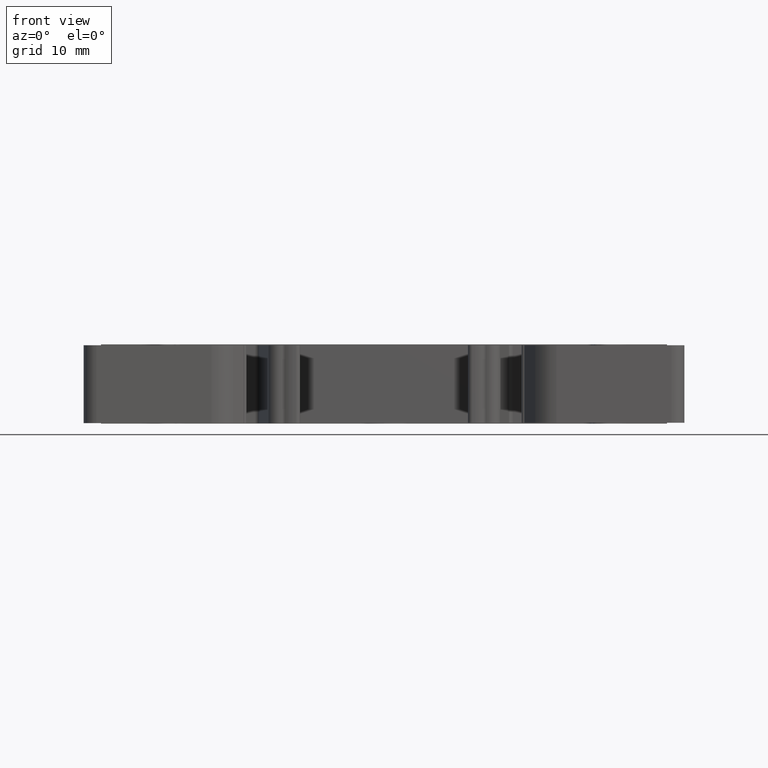
[diagram: clean part render]
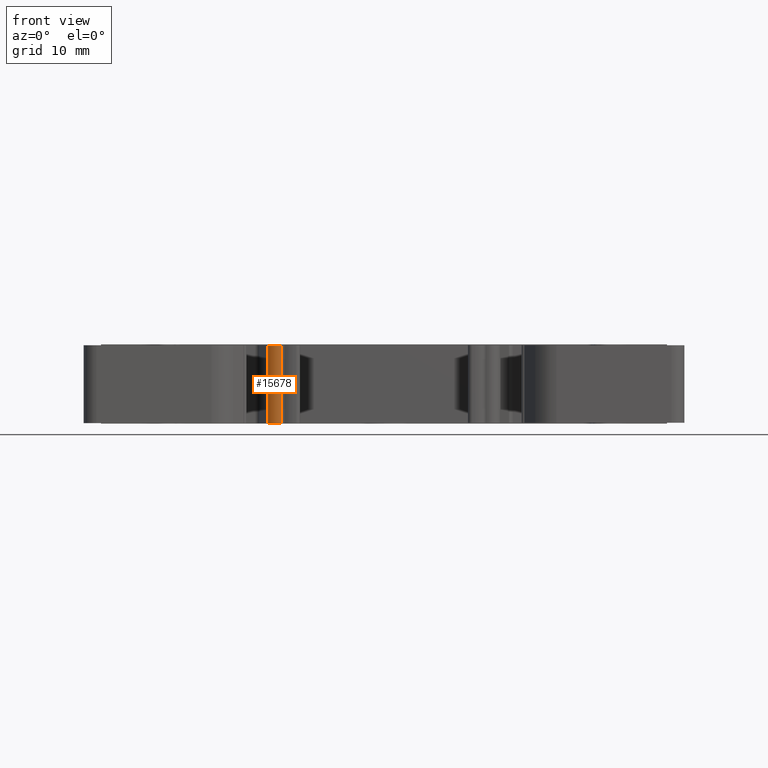
[diagram: same view with one face highlighted and labeled with its STEP entity id]
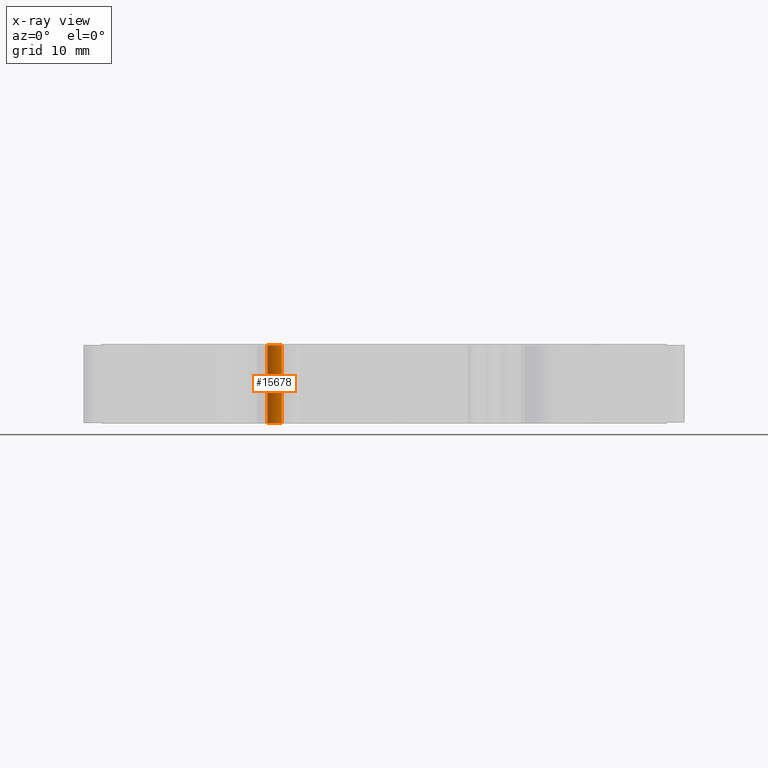
[diagram: x-ray of the same camera — body ghosted, the highlighted face saturated]
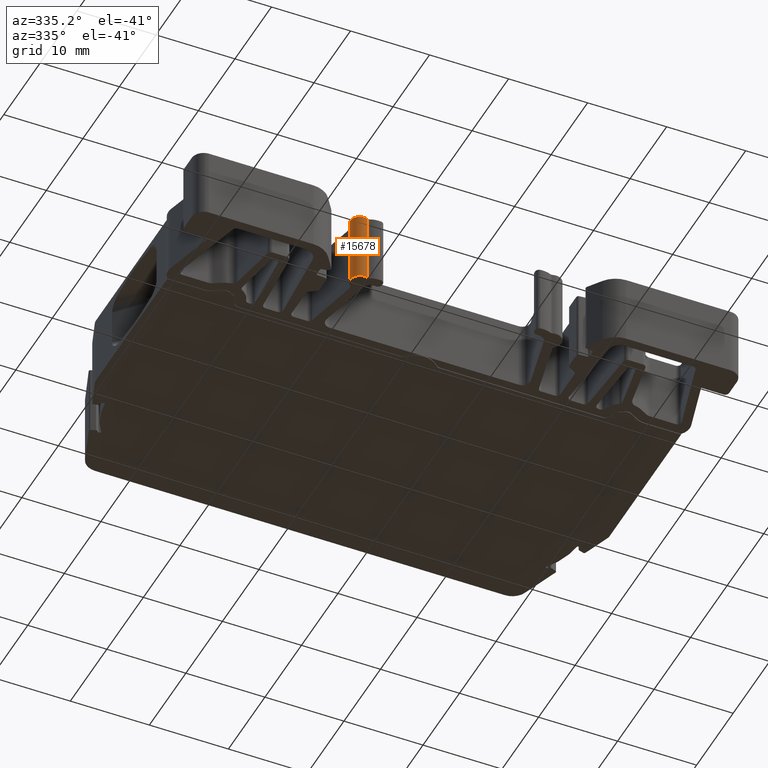
[diagram: same view with one face highlighted and labeled with its STEP entity id]
A machine part, front view. The second image highlights one B-rep face of the part: STEP entity #15678.
The next image is the same camera in x-ray: the body ghosted, the highlighted face saturated — about 0% of this face is hidden behind the body in this view.
A second angle (auxiliary view) of the same face is appended — the face is thin or edge-on in the first view.
In plain terms, the highlighted cylindrical surface (edge-blend (fillet) strip) has radius 1.25 mm, axis along (0, 0, -1).
Its self-contained STEP definition (entity closure, byte-faithful):
#1558 = AXIS2_PLACEMENT_3D ( 'NONE', #9824, #9842, #9845 ) ;
#3228 = EDGE_CURVE ( 'NONE', #4035, #4172, #11265, .T. ) ;
#3240 = EDGE_CURVE ( 'NONE', #4112, #4035, #14305, .T. ) ;
#3249 = EDGE_CURVE ( 'NONE', #4116, #4112, #11314, .T. ) ;
#3334 = EDGE_CURVE ( 'NONE', #4172, #4116, #14576, .T. ) ;
#4035 = VERTEX_POINT ( 'NONE', #10660 ) ;
#4112 = VERTEX_POINT ( 'NONE', #10779 ) ;
#4116 = VERTEX_POINT ( 'NONE', #10789 ) ;
#4172 = VERTEX_POINT ( 'NONE', #10827 ) ;
#4569 = ORIENTED_EDGE ( 'NONE', *, *, #3249, .T. ) ;
#4581 = ORIENTED_EDGE ( 'NONE', *, *, #3334, .T. ) ;
#4585 = ORIENTED_EDGE ( 'NONE', *, *, #3240, .T. ) ;
#4602 = ORIENTED_EDGE ( 'NONE', *, *, #3228, .T. ) ;
#6111 = EDGE_LOOP ( 'NONE', ( #4569, #4585, #4602, #4581 ) ) ;
#9797 = FACE_OUTER_BOUND ( 'NONE', #6111, .T. ) ;
#9824 = CARTESIAN_POINT ( 'NONE',  ( 460.0868206235280100, 100.9281166070622100, 35.79999999999999700 ) ) ;
#9832 = CYLINDRICAL_SURFACE ( 'NONE', #1558, 1.250000258073980000 ) ;
#9842 = DIRECTION ( 'NONE',  ( 0.0000000000000000000, 0.0000000000000000000, -1.000000000000000000 ) ) ;
#9845 = DIRECTION ( 'NONE',  ( -1.000000000000000000, 0.0000000000000000000, 0.0000000000000000000 ) ) ;
#10660 = CARTESIAN_POINT ( 'NONE',  ( 458.8368203654540600, 100.9281166070622100, 26.89999999999999900 ) ) ;
#10779 = CARTESIAN_POINT ( 'NONE',  ( 458.8368203654540600, 100.9281166070622100, 35.85000000000000100 ) ) ;
#10789 = CARTESIAN_POINT ( 'NONE',  ( 460.4825954267300300, 99.74242569019752100, 35.85000000000000100 ) ) ;
#10827 = CARTESIAN_POINT ( 'NONE',  ( 460.4825954267300300, 99.74242569019752100, 26.89999999999999900 ) ) ;
#11265 = CIRCLE ( 'NONE', #11267, 1.250000258073980000 ) ;
#11267 = AXIS2_PLACEMENT_3D ( 'NONE', #14294, #14330, #14334 ) ;
#11314 = CIRCLE ( 'NONE', #11319, 1.250000258073980000 ) ;
#11319 = AXIS2_PLACEMENT_3D ( 'NONE', #14257, #14291, #14261 ) ;
#11337 = VECTOR ( 'NONE', #14315, 1000.000000000000000 ) ;
#11385 = VECTOR ( 'NONE', #14590, 1000.000000000000000 ) ;
#14257 = CARTESIAN_POINT ( 'NONE',  ( 460.0868206235280100, 100.9281166070622100, 35.85000000000000100 ) ) ;
#14261 = DIRECTION ( 'NONE',  ( 1.000000000000000000, 0.0000000000000000000, 0.0000000000000000000 ) ) ;
#14281 = CARTESIAN_POINT ( 'NONE',  ( 458.8368203654540600, 100.9281166070622100, 35.79999999999999700 ) ) ;
#14291 = DIRECTION ( 'NONE',  ( -0.0000000000000000000, -0.0000000000000000000, -1.000000000000000000 ) ) ;
#14294 = CARTESIAN_POINT ( 'NONE',  ( 460.0868206235280100, 100.9281166070622100, 26.89999999999999900 ) ) ;
#14305 = LINE ( 'NONE', #14281, #11337 ) ;
#14315 = DIRECTION ( 'NONE',  ( 0.0000000000000000000, 0.0000000000000000000, -1.000000000000000000 ) ) ;
#14330 = DIRECTION ( 'NONE',  ( 0.0000000000000000000, 0.0000000000000000000, 1.000000000000000000 ) ) ;
#14334 = DIRECTION ( 'NONE',  ( 1.000000000000000000, 0.0000000000000000000, 0.0000000000000000000 ) ) ;
#14568 = CARTESIAN_POINT ( 'NONE',  ( 460.4825954267300300, 99.74242569019752100, 35.79999999999999700 ) ) ;
#14576 = LINE ( 'NONE', #14568, #11385 ) ;
#14590 = DIRECTION ( 'NONE',  ( -0.0000000000000000000, -0.0000000000000000000, 1.000000000000000000 ) ) ;
#15678 = ADVANCED_FACE ( 'NONE', ( #9797 ), #9832, .T. ) ;